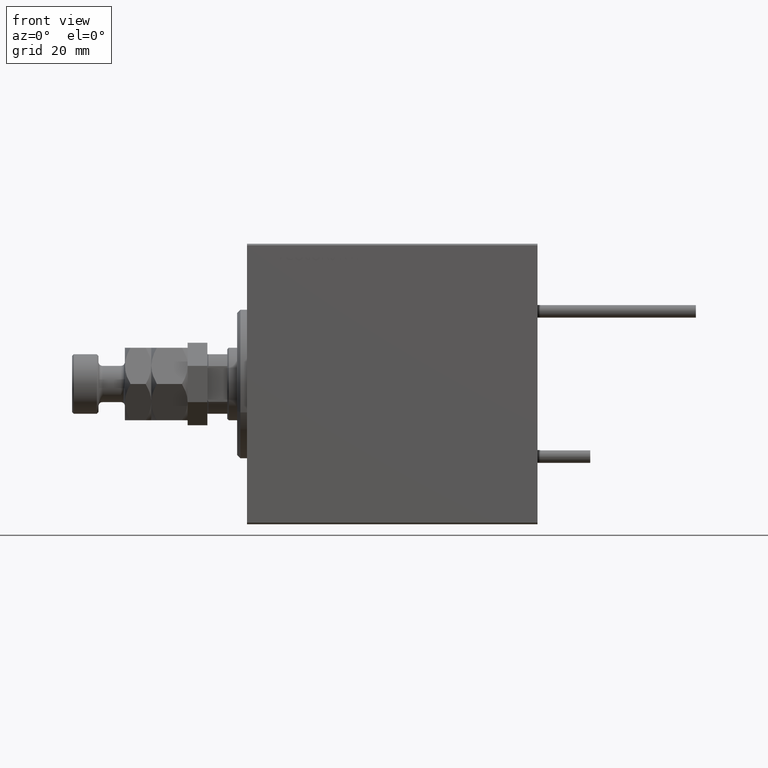
[diagram: clean part render]
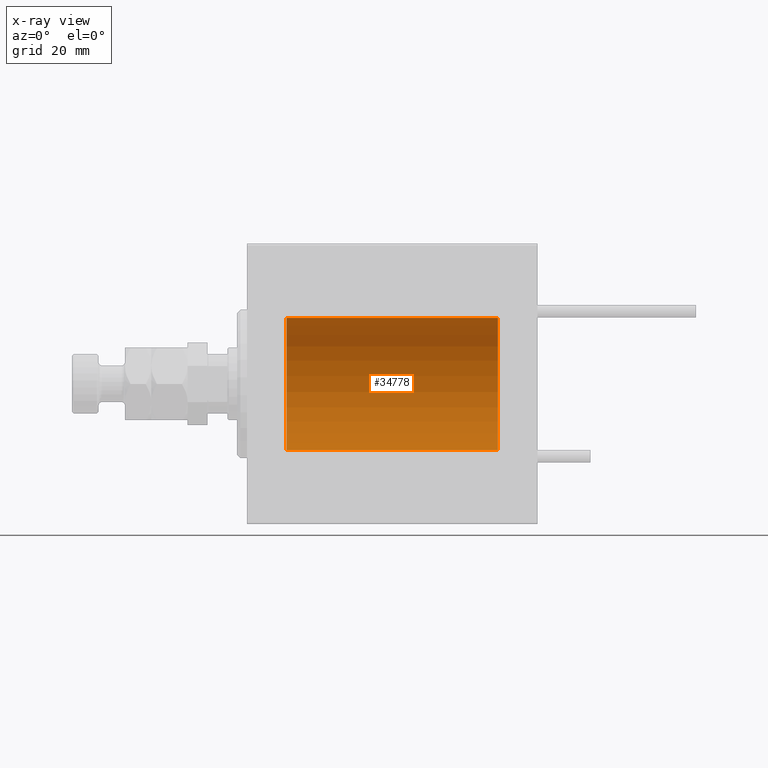
[diagram: x-ray — body ghosted, one internal face saturated and labeled with its STEP entity id]
A machine part, front view, then the same camera in x-ray: the body is ghosted and one INTERNAL B-rep face — a face not visible from any outside direction — is saturated and labeled: STEP entity #34778.
In plain terms, the highlighted cylindrical surface (partial cylindrical patch) has radius 20 mm, axis along (-1, -0, -0).
Its self-contained STEP definition (entity closure, byte-faithful):
#341 = EDGE_CURVE ( 'NONE', #23124, #42335, #26532, .T. ) ;
#405 = CARTESIAN_POINT ( 'NONE',  ( 11.99999999999999645, 0.000000000000000000, 20.00000000000000000 ) ) ;
#807 = AXIS2_PLACEMENT_3D ( 'NONE', #10477, #10986, #21738 ) ;
#2465 = DIRECTION ( 'NONE',  ( -1.000000000000000000, -0.000000000000000000, -0.000000000000000000 ) ) ;
#2492 = CIRCLE ( 'NONE', #18410, 20.00000000000000000 ) ;
#3540 = DIRECTION ( 'NONE',  ( -1.000000000000000000, 0.000000000000000000, 0.000000000000000000 ) ) ;
#3558 = DIRECTION ( 'NONE',  ( -1.000000000000000000, 0.000000000000000000, 0.000000000000000000 ) ) ;
#7825 = EDGE_CURVE ( 'NONE', #45092, #42335, #27141, .T. ) ;
#10477 = CARTESIAN_POINT ( 'NONE',  ( 76.00000000000000000, 0.000000000000000000, 0.000000000000000000 ) ) ;
#10986 = DIRECTION ( 'NONE',  ( -1.000000000000000000, -0.000000000000000000, -0.000000000000000000 ) ) ;
#11240 = AXIS2_PLACEMENT_3D ( 'NONE', #31293, #3558, #39668 ) ;
#13034 = ORIENTED_EDGE ( 'NONE', *, *, #341, .F. ) ;
#14992 = CARTESIAN_POINT ( 'NONE',  ( 76.00000000000000000, 2.449293598294706513E-15, -20.00000000000000000 ) ) ;
#15361 = ORIENTED_EDGE ( 'NONE', *, *, #7825, .T. ) ;
#18410 = AXIS2_PLACEMENT_3D ( 'NONE', #39398, #3540, #51410 ) ;
#19030 = VECTOR ( 'NONE', #35399, 1000.000000000000000 ) ;
#21738 = DIRECTION ( 'NONE',  ( 0.000000000000000000, 0.000000000000000000, 1.000000000000000000 ) ) ;
#21841 = CARTESIAN_POINT ( 'NONE',  ( 76.00000000000000000, 0.000000000000000000, 20.00000000000000000 ) ) ;
#22257 = CYLINDRICAL_SURFACE ( 'NONE', #807, 20.00000000000000000 ) ;
#23124 = VERTEX_POINT ( 'NONE', #46821 ) ;
#26532 = LINE ( 'NONE', #14992, #19030 ) ;
#27141 = CIRCLE ( 'NONE', #11240, 20.00000000000000000 ) ;
#30926 = CARTESIAN_POINT ( 'NONE',  ( 76.00000000000000000, 0.000000000000000000, 20.00000000000000000 ) ) ;
#31293 = CARTESIAN_POINT ( 'NONE',  ( 11.99999999999999645, 0.000000000000000000, 0.000000000000000000 ) ) ;
#33863 = LINE ( 'NONE', #21841, #49428 ) ;
#34778 = ADVANCED_FACE ( 'NONE', ( #50736 ), #22257, .F. ) ;
#35399 = DIRECTION ( 'NONE',  ( -1.000000000000000000, -0.000000000000000000, -0.000000000000000000 ) ) ;
#38268 = EDGE_CURVE ( 'NONE', #45533, #23124, #2492, .T. ) ;
#39398 = CARTESIAN_POINT ( 'NONE',  ( 76.00000000000000000, 0.000000000000000000, 0.000000000000000000 ) ) ;
#39668 = DIRECTION ( 'NONE',  ( 0.000000000000000000, 0.000000000000000000, 1.000000000000000000 ) ) ;
#42335 = VERTEX_POINT ( 'NONE', #48392 ) ;
#42819 = EDGE_CURVE ( 'NONE', #45533, #45092, #33863, .T. ) ;
#45092 = VERTEX_POINT ( 'NONE', #405 ) ;
#45206 = ORIENTED_EDGE ( 'NONE', *, *, #42819, .T. ) ;
#45533 = VERTEX_POINT ( 'NONE', #30926 ) ;
#46821 = CARTESIAN_POINT ( 'NONE',  ( 76.00000000000000000, 2.449293598294706513E-15, -20.00000000000000000 ) ) ;
#47892 = EDGE_LOOP ( 'NONE', ( #13034, #51161, #45206, #15361 ) ) ;
#48392 = CARTESIAN_POINT ( 'NONE',  ( 11.99999999999999645, 2.449293598294706513E-15, -20.00000000000000000 ) ) ;
#49428 = VECTOR ( 'NONE', #2465, 1000.000000000000000 ) ;
#50736 = FACE_OUTER_BOUND ( 'NONE', #47892, .T. ) ;
#51161 = ORIENTED_EDGE ( 'NONE', *, *, #38268, .F. ) ;
#51410 = DIRECTION ( 'NONE',  ( 0.000000000000000000, 0.000000000000000000, 1.000000000000000000 ) ) ;